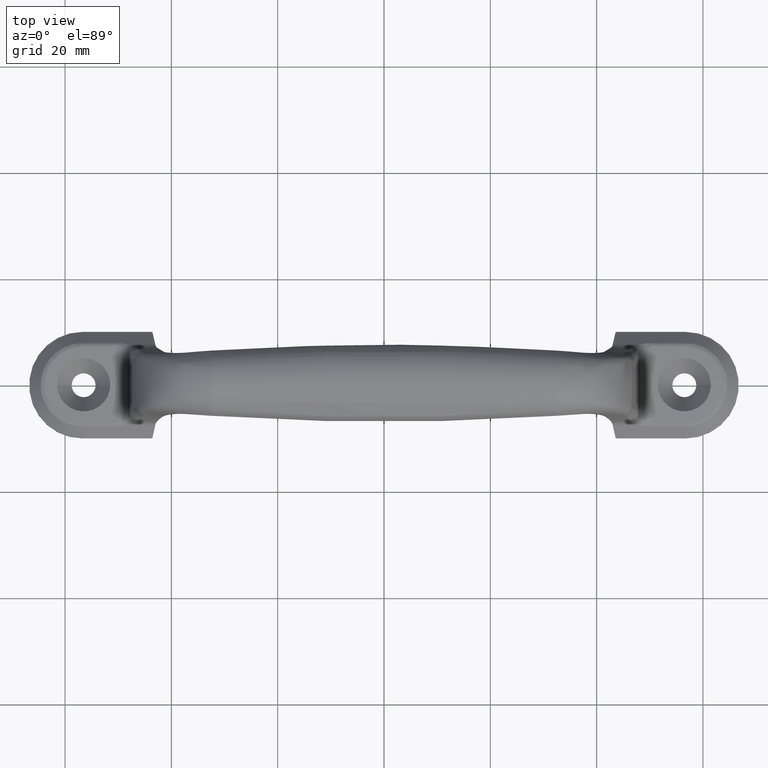
[diagram: clean part render]
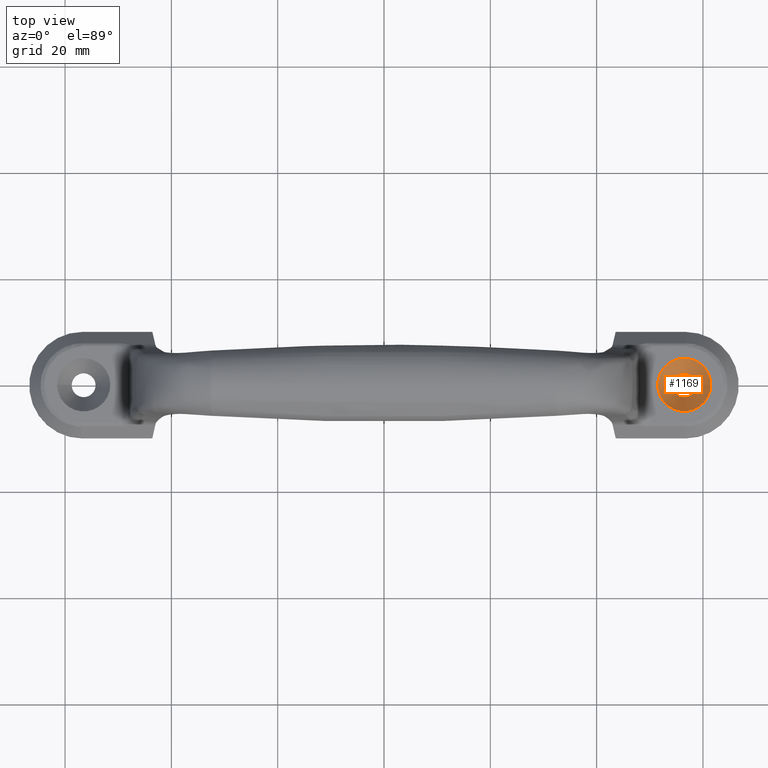
[diagram: same view with one face highlighted and labeled with its STEP entity id]
A machine part, top view. The second image highlights one B-rep face of the part: STEP entity #1169.
In plain terms, the highlighted conical surface has half-angle 35.893 deg.
Its self-contained STEP definition (entity closure, byte-faithful):
#15=CONICAL_SURFACE('',#1225,5.,35.8926656877456);
#144=FACE_BOUND('',#282,.T.);
#153=CIRCLE('',#1210,5.);
#207=FACE_OUTER_BOUND('',#281,.T.);
#281=EDGE_LOOP('',(#914));
#282=EDGE_LOOP('',(#915));
#351=B_SPLINE_CURVE_WITH_KNOTS('',3,(#3098,#3099,#3100,#3101,#3102,#3103,
#3104,#3105,#3106,#3107,#3108,#3109,#3110,#3111,#3112,#3113,#3114,#3115,
#3116,#3117,#3118,#3119,#3120,#3121,#3122,#3123,#3124,#3125,#3126,#3127,
#3128,#3129,#3130,#3131,#3132,#3133,#3134,#3135,#3136,#3137,#3138,#3139,
#3140,#3141,#3142,#3143,#3144,#3145,#3146,#3147,#3148,#3149,#3150,#3151,
#3152,#3153,#3154,#3155),.UNSPECIFIED.,.T.,.F.,(4,3,3,3,3,3,3,3,3,3,3,3,
3,3,3,3,3,3,3,4),(0.,0.051222246473751,0.104928802993151,0.158636618512223,
0.212345145176111,0.266053484296445,0.319760812473158,0.373466746938871,
0.427171520132927,0.480875880506667,0.534580760463165,0.588286860814568,
0.641994340444084,0.695702750169835,0.749411236424293,0.803118919056159,
0.856825274260975,0.910530357503596,0.964234774922914,1.),.UNSPECIFIED.);
#461=VERTEX_POINT('',#3097);
#467=VERTEX_POINT('',#3246);
#585=EDGE_CURVE('',#461,#461,#351,.T.);
#591=EDGE_CURVE('',#467,#467,#153,.T.);
#914=ORIENTED_EDGE('',*,*,#591,.T.);
#915=ORIENTED_EDGE('',*,*,#585,.F.);
#1169=ADVANCED_FACE('',(#207,#144),#15,.F.);
#1210=AXIS2_PLACEMENT_3D('',#3247,#1260,#1261);
#1225=AXIS2_PLACEMENT_3D('',#5082,#1314,#1315);
#1260=DIRECTION('center_axis',(0.,0.,1.));
#1261=DIRECTION('ref_axis',(1.,0.,0.));
#1314=DIRECTION('center_axis',(0.,0.,1.));
#1315=DIRECTION('ref_axis',(1.,0.,0.));
#3097=CARTESIAN_POINT('',(58.2740083968327,1.50369479085572,1.01282202614305));
#3098=CARTESIAN_POINT('Ctrl Pts',(58.2740083968327,1.50369479085573,1.01282202614305));
#3099=CARTESIAN_POINT('Ctrl Pts',(58.1260785340094,1.69330203022036,1.01175852481076));
#3100=CARTESIAN_POINT('Ctrl Pts',(57.9450908185314,1.86095327940179,1.01045686682964));
#3101=CARTESIAN_POINT('Ctrl Pts',(57.7448964191596,1.99391945814394,1.00901579989273));
#3102=CARTESIAN_POINT('Ctrl Pts',(57.5349924699012,2.13333457726495,1.00750484033465));
#3103=CARTESIAN_POINT('Ctrl Pts',(57.2982551571775,2.238335051059,1.00579971285422));
#3104=CARTESIAN_POINT('Ctrl Pts',(57.054185985803,2.30035629264735,1.0040400944175));
#3105=CARTESIAN_POINT('Ctrl Pts',(56.8101110929108,2.36237898814986,1.00228043473145));
#3106=CARTESIAN_POINT('Ctrl Pts',(56.5519625107544,2.38311646058189,1.00041773037761));
#3107=CARTESIAN_POINT('Ctrl Pts',(56.3011171251254,2.36085170730862,0.998606096567812));
#3108=CARTESIAN_POINT('Ctrl Pts',(56.0502684180543,2.3385866592279,0.996794438770184));
#3109=CARTESIAN_POINT('Ctrl Pts',(55.799804338162,2.27270409677859,0.994983890710504));
#3110=CARTESIAN_POINT('Ctrl Pts',(55.5704661940064,2.16865936802522,0.993324765066657));
#3111=CARTESIAN_POINT('Ctrl Pts',(55.3411288506713,2.06461500258322,0.991665645216272));
#3112=CARTESIAN_POINT('Ctrl Pts',(55.1265917484406,1.91953890534873,0.990112213146907));
#3113=CARTESIAN_POINT('Ctrl Pts',(54.9446219894101,1.7454445223876,0.988793844292194));
#3114=CARTESIAN_POINT('Ctrl Pts',(54.7626556555677,1.57135341637766,0.98747550025293));
#3115=CARTESIAN_POINT('Ctrl Pts',(54.6082364618,1.36344323085506,0.986355886156808));
#3116=CARTESIAN_POINT('Ctrl Pts',(54.4941534056904,1.1389313305082,0.985528483538488));
#3117=CARTESIAN_POINT('Ctrl Pts',(54.3800733100485,0.91442525626955,0.984701102391356));
#3118=CARTESIAN_POINT('Ctrl Pts',(54.3031807430476,0.667125973455676,0.984143128234214));
#3119=CARTESIAN_POINT('Ctrl Pts',(54.2698441027225,0.417513089868304,0.983901222550505));
#3120=CARTESIAN_POINT('Ctrl Pts',(54.2365081832282,0.167905603605637,0.983659322097469));
#3121=CARTESIAN_POINT('Ctrl Pts',(54.2458068423425,-0.0908999223652014,
0.983726814796322));
#3122=CARTESIAN_POINT('Ctrl Pts',(54.2969700211123,-0.337471387029683,0.98409805413474));
#3123=CARTESIAN_POINT('Ctrl Pts',(54.3481328065987,-0.584040956337309,0.984469290619498));
#3124=CARTESIAN_POINT('Ctrl Pts',(54.4425705127724,-0.825177252785231,0.985154492476409));
#3125=CARTESIAN_POINT('Ctrl Pts',(54.5724622169136,-1.04091231124999,0.986096376534622));
#3126=CARTESIAN_POINT('Ctrl Pts',(54.7023551777402,-1.25664945692361,0.987038269705441));
#3127=CARTESIAN_POINT('Ctrl Pts',(54.8712852332528,-1.45293502357118,0.988262793388418));
#3128=CARTESIAN_POINT('Ctrl Pts',(55.0652630281934,-1.61351592429411,0.989667763990225));
#3129=CARTESIAN_POINT('Ctrl Pts',(55.2592452311042,-1.77410047407302,0.991072766518721));
#3130=CARTESIAN_POINT('Ctrl Pts',(55.4836263418363,-1.90340775939356,0.992696936876363));
#3131=CARTESIAN_POINT('Ctrl Pts',(55.7198257055751,-1.99073114260605,0.994405104578804));
#3132=CARTESIAN_POINT('Ctrl Pts',(55.9560311353773,-2.07805676845448,0.996113316150345));
#3133=CARTESIAN_POINT('Ctrl Pts',(56.2105701074493,-2.12580485716223,0.997952618686548));
#3134=CARTESIAN_POINT('Ctrl Pts',(56.4623647533018,-2.13002192197825,0.999770427105149));
#3135=CARTESIAN_POINT('Ctrl Pts',(56.7141637596876,-2.13423905982462,1.00158826700422));
#3136=CARTESIAN_POINT('Ctrl Pts',(56.9701632751899,-2.0950399464487,1.00343474975255));
#3137=CARTESIAN_POINT('Ctrl Pts',(57.2091638704511,-2.01567039557853,1.00515720814631));
#3138=CARTESIAN_POINT('Ctrl Pts',(57.4481648062624,-1.9363007316153,1.00687966899439));
#3139=CARTESIAN_POINT('Ctrl Pts',(57.6767588384833,-1.81457127671455,1.00852563652465));
#3140=CARTESIAN_POINT('Ctrl Pts',(57.876015033713,-1.6605620352589,1.00995944920425));
#3141=CARTESIAN_POINT('Ctrl Pts',(58.0752682475372,-1.50655509819338,1.01139324043018));
#3142=CARTESIAN_POINT('Ctrl Pts',(58.2506802883455,-1.31602141808071,1.01265446594475));
#3143=CARTESIAN_POINT('Ctrl Pts',(58.3877237278072,-1.10473920272505,1.01363944443314));
#3144=CARTESIAN_POINT('Ctrl Pts',(58.5247637801339,-0.893462209373274,1.01462439857703));
#3145=CARTESIAN_POINT('Ctrl Pts',(58.627216929715,-0.655610204822083,1.01536031958875));
#3146=CARTESIAN_POINT('Ctrl Pts',(58.6865978578872,-0.410880390113544,1.01578681755935));
#3147=CARTESIAN_POINT('Ctrl Pts',(58.7459773797025,-0.1661563714988,1.01621330542892));
#3148=CARTESIAN_POINT('Ctrl Pts',(58.7639244980681,0.0921950268328459,1.01634216462667));
#3149=CARTESIAN_POINT('Ctrl Pts',(58.7389527695469,0.342779128412127,1.01616282916126));
#3150=CARTESIAN_POINT('Ctrl Pts',(58.7139813506194,0.593360123307201,1.0159834959192));
#3151=CARTESIAN_POINT('Ctrl Pts',(58.6454846013025,0.843123183999597,1.01549102236282));
#3152=CARTESIAN_POINT('Ctrl Pts',(58.5385605060601,1.07199892808606,1.0147233731866));
#3153=CARTESIAN_POINT('Ctrl Pts',(58.4673528751747,1.22442200416236,1.01421214623569));
#3154=CARTESIAN_POINT('Ctrl Pts',(58.3779854547352,1.37042350587049,1.01356954079287));
#3155=CARTESIAN_POINT('Ctrl Pts',(58.2740083968327,1.50369479085573,1.01282202614305));
#3246=CARTESIAN_POINT('',(61.4882881227538,0.119662585738755,4.8));
#3247=CARTESIAN_POINT('Origin',(56.4882881227538,0.119662585738755,4.8));
#5082=CARTESIAN_POINT('Origin',(56.4882881227538,0.119662585738755,4.8));